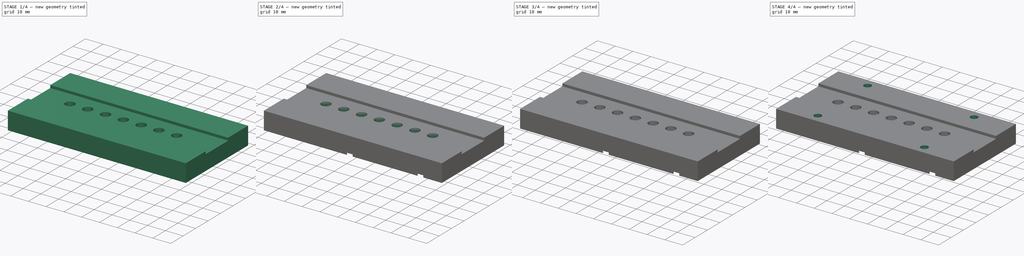
[diagram: build sequence overview — one tinted view per stage of 4, left to right]
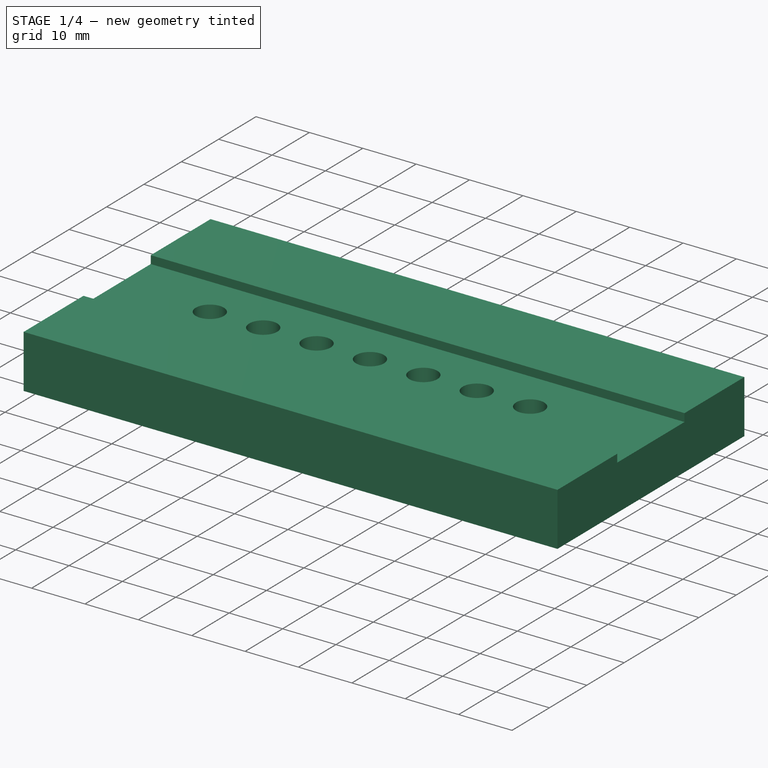
[diagram: stage 1 of 4 — iso view after this stage's code; geometry added in this stage tinted green]
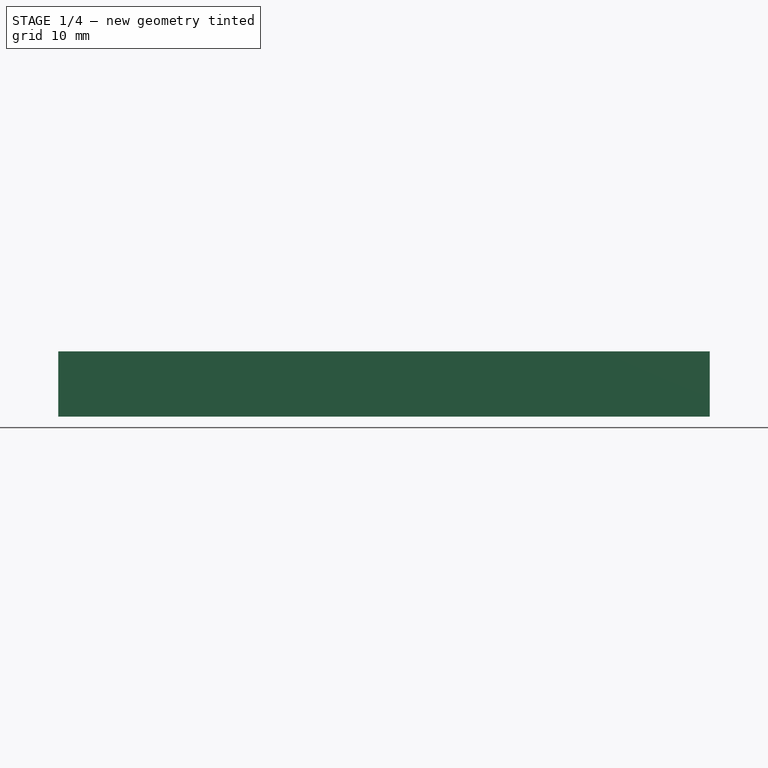
[diagram: stage 1 of 4 — front view after this stage's code; geometry added in this stage tinted green]
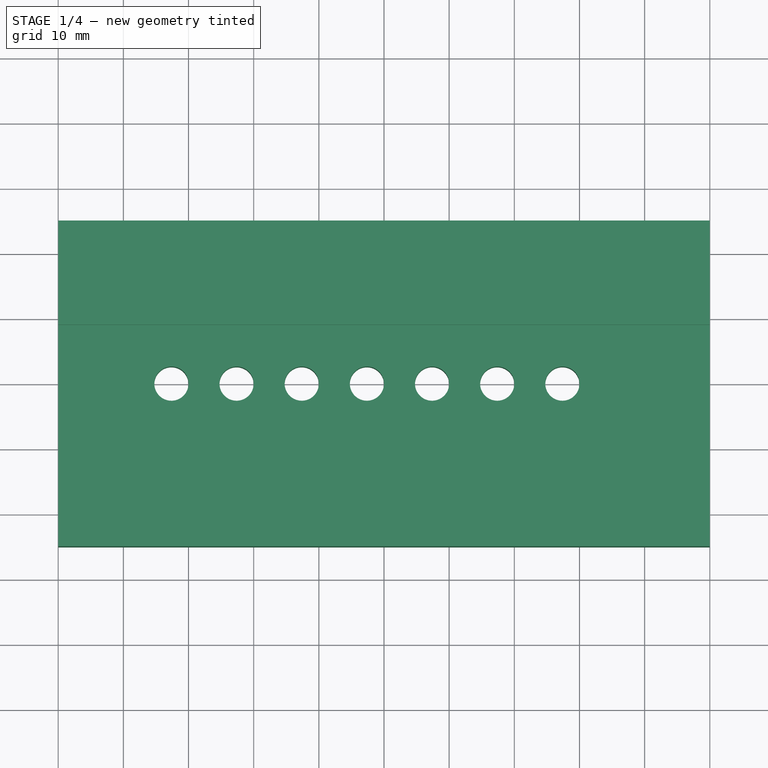
[diagram: stage 1 of 4 — top view after this stage's code; geometry added in this stage tinted green]
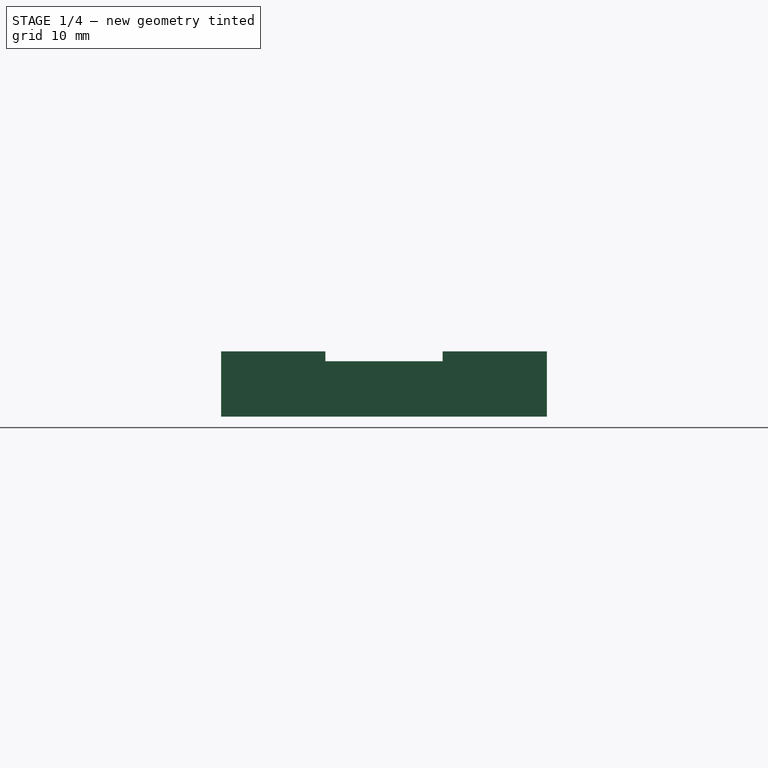
[diagram: stage 1 of 4 — right view after this stage's code; geometry added in this stage tinted green]
FCSTD DOCUMENT  (FreeCAD 0.20R29410 (Git))
Label: BladeholderRevB
License: All rights reserved
LicenseURL: http://en.wikipedia.org/wiki/All_rights_reserved
objects: Sketcher::SketchObject×12, PartDesign::Pocket×9, App::MeasureDistance×5, PartDesign::Pad×3, PartDesign::Plane×1, PartDesign::Chamfer×1, PartDesign::Body×1
note: 40 computed .brp shape members not serialized (recipe doc carries the construction recipe); baked Part::Feature solids carry a one-line shape summary decoded from their .brp

FEATURE [Sketcher::SketchObject] Sketch
  FullyConstrained = true
  MapMode = 5
  Support = -> [XY_Plane]
  sketch-geometry (4):
    g0: LineSegment StartX=-50 StartY=25 StartZ=0 EndX=50 EndY=25 EndZ=0
    g1: LineSegment StartX=50 StartY=25 StartZ=0 EndX=50 EndY=-25 EndZ=0
    g2: LineSegment StartX=50 StartY=-25 StartZ=0 EndX=-50 EndY=-25 EndZ=0
    g3: LineSegment StartX=-50 StartY=-25 StartZ=0 EndX=-50 EndY=25 EndZ=0
  constraints (11):
    c: Coincident(g0,g1)
    c: Coincident(g1,g2)
    c: Coincident(g2,g3)
    c: Coincident(g3,g0)
    c: Horizontal(g0)
    c: Horizontal(g2)
    c: Vertical(g1)
    c: Vertical(g3)
    c: Symmetric(g1,g0,g-1)
    c: DistanceX(g0,g0) = 100
    c: DistanceY(g3,g3) = 50
FEATURE [PartDesign::Pad] Pad
  Direction = (0,0,1)
  Length = 10
  Length2 = 10
  Profile = -> Sketch
  ReferenceAxis = -> Sketch [N_Axis]
  Type = 0
FEATURE [Sketcher::SketchObject] Sketch001
  ExternalGeometry = -> [Pad]
  FullyConstrained = true
  MapMode = 5
  Placement = pos=(0,0,10) rot=(0,0,1;0rad)
  Support = -> [Pad]
  sketch-geometry (4):
    g0: LineSegment StartX=-50 StartY=9 StartZ=0 EndX=50 EndY=9 EndZ=0
    g1: LineSegment StartX=50 StartY=9 StartZ=0 EndX=50 EndY=-9 EndZ=0
    g2: LineSegment StartX=50 StartY=-9 StartZ=0 EndX=-50 EndY=-9 EndZ=0
    g3: LineSegment StartX=-50 StartY=-9 StartZ=0 EndX=-50 EndY=9 EndZ=0
  constraints (11):
    c: Coincident(g0,g1)
    c: Coincident(g1,g2)
    c: Coincident(g2,g3)
    c: Coincident(g3,g0)
    c: Horizontal(g0)
    c: Horizontal(g2)
    c: Vertical(g1)
    c: Vertical(g3)
    c: PointOnObject(g0,g-3)
    c: Symmetric(g2,g0,g-1)
    c: DistanceY(g1,g1) = 18
FEATURE [PartDesign::Pocket] Pocket  label="BladeSlot"
  BaseFeature = -> Pad
  Direction = (0,0,-1)
  Length = 1.5
  Length2 = 5
  Profile = -> Sketch001
  ReferenceAxis = -> Sketch001 [N_Axis]
  Type = 0
FEATURE [App::MeasureDistance] Distance  label="Distance: 99.89 mm"
  Distance = 99.892
  P1 = (-50,25,5)
  P2 = (49.892,25,5)
FEATURE [App::MeasureDistance] Distance001  label="Distance: 49.70 mm"
  Distance = 49.704
  P1 = (-50,24.704,5)
  P2 = (-50,-25,5)
FEATURE [Sketcher::SketchObject] Sketch002
  ExternalGeometry = -> [Pocket]
  FullyConstrained = true
  MapMode = 5
  Placement = pos=(0,0,8.5) rot=(0,0,1;0rad)
  Support = -> [Pocket]
  sketch-geometry (7):
    g0: Circle CenterX=-22.625 CenterY=0 CenterZ=0 NormalX=0 NormalY=0 NormalZ=1 AngleXU=0 Radius=2.625
    g1: Circle CenterX=-12.625 CenterY=0 CenterZ=0 NormalX=0 NormalY=0 NormalZ=1 AngleXU=0 Radius=2.625
    g2: Circle CenterX=-2.625 CenterY=0 CenterZ=0 NormalX=0 NormalY=0 NormalZ=1 AngleXU=0 Radius=2.625
    g3: Circle CenterX=7.375 CenterY=0 CenterZ=0 NormalX=0 NormalY=0 NormalZ=1 AngleXU=0 Radius=2.625
    g4: Circle CenterX=17.375 CenterY=0 CenterZ=0 NormalX=0 NormalY=0 NormalZ=1 AngleXU=0 Radius=2.625
    g5: Circle CenterX=27.375 CenterY=0 CenterZ=0 NormalX=0 NormalY=0 NormalZ=1 AngleXU=0 Radius=2.625
    g6: Circle CenterX=-32.625 CenterY=0 CenterZ=0 NormalX=0 NormalY=0 NormalZ=1 AngleXU=0 Radius=2.625
  constraints (21):
    c: PointOnObject(g0,g-1)
    c: PointOnObject(g1,g-1)
    c: PointOnObject(g2,g-1)
    c: PointOnObject(g3,g-1)
    c: PointOnObject(g4,g-1)
    c: PointOnObject(g5,g-1)
    c: PointOnObject(g6,g-1)
    c: DistanceX(g6,g0) = 10
    c: DistanceX(g0,g1) = 10
    c: DistanceX(g1,g2) = 10
    c: DistanceX(g2,g3) = 10
    c: DistanceX(g3,g4) = 10
    c: DistanceX(g4,g5) = 10
    c: Equal(g6,g0)
    c: Equal(g0,g1)
    c: Equal(g1,g2)
    c: Equal(g2,g3)
    c: Equal(g3,g4)
    c: Equal(g4,g5)
    c: Diameter(g5) = 5.25
    c: DistanceX(g6,g-1) = 32.625
FEATURE [PartDesign::Pocket] Pocket001  label="BladeHoles"
  BaseFeature = -> Pocket
  Direction = (0,0,-1)
  Length = 5
  Length2 = 5
  Profile = -> Sketch002
  ReferenceAxis = -> Sketch002 [N_Axis]
  Type = 1
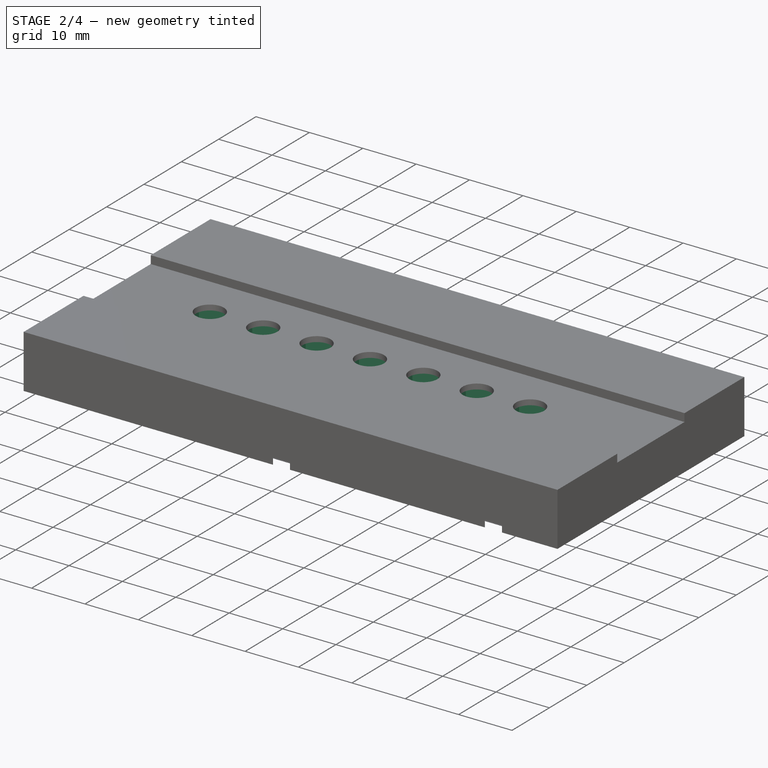
[diagram: stage 2 of 4 — iso view after this stage's code; geometry added in this stage tinted green]
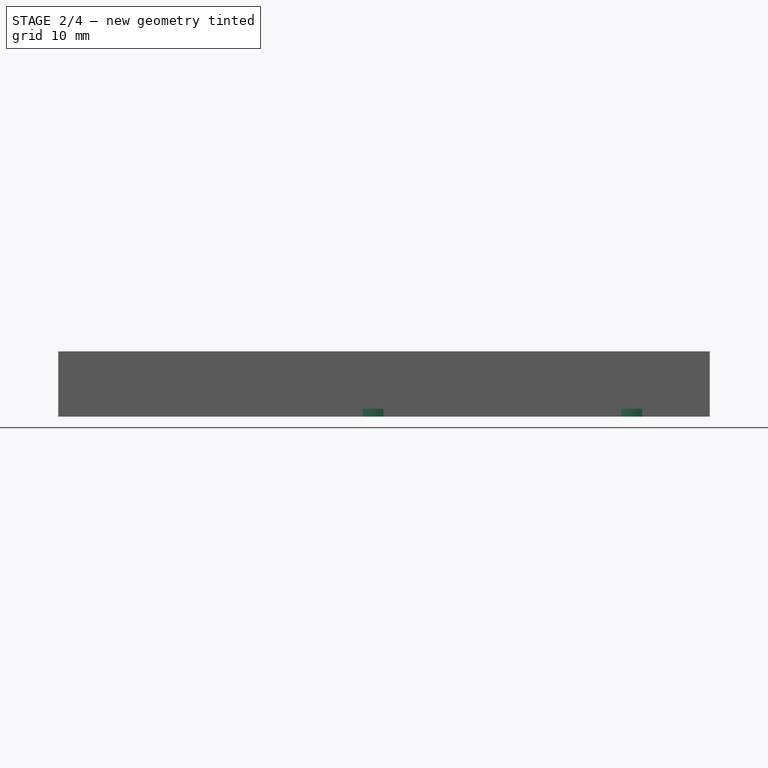
[diagram: stage 2 of 4 — front view after this stage's code; geometry added in this stage tinted green]
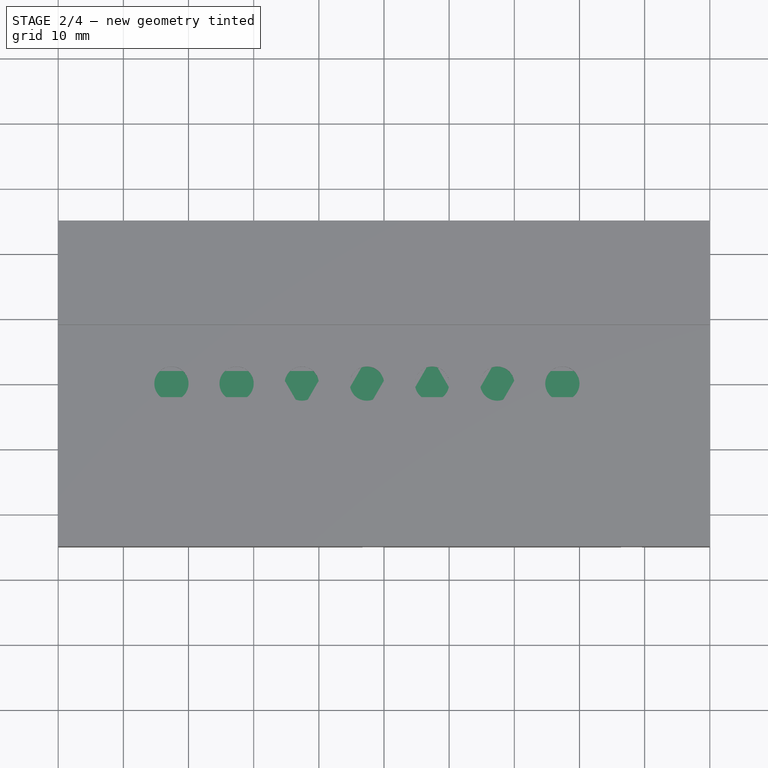
[diagram: stage 2 of 4 — top view after this stage's code; geometry added in this stage tinted green]
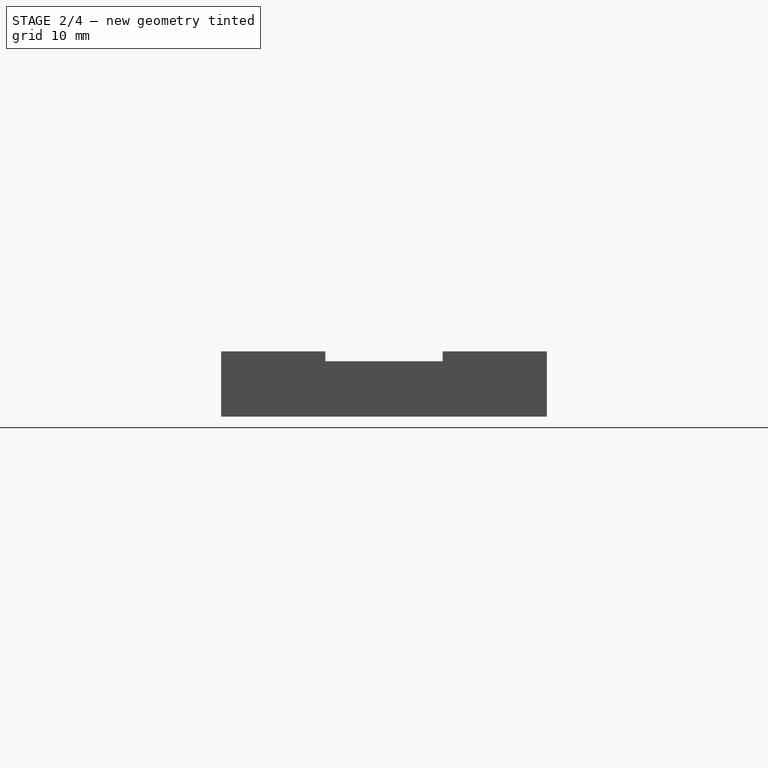
[diagram: stage 2 of 4 — right view after this stage's code; geometry added in this stage tinted green]
FEATURE [App::MeasureDistance] Distance002  label="Distance: 20.00 mm"
  Distance = 20.0026
  P1 = (29.9237,0.628204,3.5)
  P2 = (49.9152,-0.03678,3.5)
FEATURE [Sketcher::SketchObject] Sketch003
  ExternalGeometry = -> [Pocket001]
  FullyConstrained = true
  MapMode = 5
  Placement = pos=(0,0,0) rot=(1,0,0;3.14159rad)
  Support = -> [Pocket001]
  sketch-geometry (49):
    g0: LineSegment StartX=-32.625 StartY=-4 StartZ=0 EndX=-29.1609 EndY=-2 EndZ=0
    g1: LineSegment StartX=-29.1609 StartY=-2 StartZ=0 EndX=-29.1609 EndY=2 EndZ=0
    g2: LineSegment StartX=-29.1609 StartY=2 StartZ=0 EndX=-32.625 EndY=4 EndZ=0
    g3: LineSegment StartX=-32.625 StartY=4 StartZ=0 EndX=-36.0891 EndY=2 EndZ=0
    g4: LineSegment StartX=-36.0891 StartY=2 StartZ=0 EndX=-36.0891 EndY=-2 EndZ=0
    g5: LineSegment StartX=-36.0891 StartY=-2 StartZ=0 EndX=-32.625 EndY=-4 EndZ=0
    g6: Circle CenterX=-32.625 CenterY=0 CenterZ=0 NormalX=0 NormalY=0 NormalZ=1 AngleXU=0 Radius=4
    g7: LineSegment StartX=-22.625 StartY=-4 StartZ=0 EndX=-19.1609 EndY=-2 EndZ=0
    g8: LineSegment StartX=-19.1609 StartY=-2 StartZ=0 EndX=-19.1609 EndY=2 EndZ=0
    g9: LineSegment StartX=-19.1609 StartY=2 StartZ=0 EndX=-22.625 EndY=4 EndZ=0
    g10: LineSegment StartX=-22.625 StartY=4 StartZ=0 EndX=-26.0891 EndY=2 EndZ=0
    g11: LineSegment StartX=-26.0891 StartY=2 StartZ=0 EndX=-26.0891 EndY=-2 EndZ=0
    g12: LineSegment StartX=-26.0891 StartY=-2 StartZ=0 EndX=-22.625 EndY=-4 EndZ=0
    g13: Circle CenterX=-22.625 CenterY=0 CenterZ=0 NormalX=0 NormalY=0 NormalZ=1 AngleXU=0 Radius=4
    g14: LineSegment StartX=-12.625 StartY=-4 StartZ=0 EndX=-9.1609 EndY=-2 EndZ=0
    g15: LineSegment StartX=-9.1609 StartY=-2 StartZ=0 EndX=-9.1609 EndY=2 EndZ=0
    g16: LineSegment StartX=-9.1609 StartY=2 StartZ=0 EndX=-12.625 EndY=4 EndZ=0
    g17: LineSegment StartX=-12.625 StartY=4 StartZ=0 EndX=-16.0891 EndY=2 EndZ=0
    g18: LineSegment StartX=-16.0891 StartY=2 StartZ=0 EndX=-16.0891 EndY=-2 EndZ=0
    g19: LineSegment StartX=-16.0891 StartY=-2 StartZ=0 EndX=-12.625 EndY=-4 EndZ=0
    g20: Circle CenterX=-12.625 CenterY=0 CenterZ=0 NormalX=0 NormalY=0 NormalZ=1 AngleXU=0 Radius=4
    g21: LineSegment StartX=-2.625 StartY=-4 StartZ=0 EndX=0.839102 EndY=-2 EndZ=0
    g22: LineSegment StartX=0.839102 StartY=-2 StartZ=0 EndX=0.839102 EndY=2 EndZ=0
    g23: LineSegment StartX=0.839102 StartY=2 StartZ=0 EndX=-2.625 EndY=4 EndZ=0
    g24: LineSegment StartX=-2.625 StartY=4 StartZ=0 EndX=-6.0891 EndY=2 EndZ=0
    g25: LineSegment StartX=-6.0891 StartY=2 StartZ=0 EndX=-6.0891 EndY=-2 EndZ=0
    g26: LineSegment StartX=-6.0891 StartY=-2 StartZ=0 EndX=-2.625 EndY=-4 EndZ=0
    g27: Circle CenterX=-2.625 CenterY=0 CenterZ=0 NormalX=0 NormalY=0 NormalZ=1 AngleXU=0 Radius=4
    g28: LineSegment StartX=7.375 StartY=-4 StartZ=0 EndX=10.8391 EndY=-2 EndZ=0
    g29: LineSegment StartX=10.8391 StartY=-2 StartZ=0 EndX=10.8391 EndY=2 EndZ=0
    g30: LineSegment StartX=10.8391 StartY=2 StartZ=0 EndX=7.375 EndY=4 EndZ=0
    g31: LineSegment StartX=7.375 StartY=4 StartZ=0 EndX=3.9109 EndY=2 EndZ=0
    g32: LineSegment StartX=3.9109 StartY=2 StartZ=0 EndX=3.9109 EndY=-2 EndZ=0
    g33: LineSegment StartX=3.9109 StartY=-2 StartZ=0 EndX=7.375 EndY=-4 EndZ=0
    g34: Circle CenterX=7.375 CenterY=0 CenterZ=0 NormalX=0 NormalY=0 NormalZ=1 AngleXU=0 Radius=4
    g35: LineSegment StartX=17.375 StartY=-4 StartZ=0 EndX=20.8391 EndY=-2 EndZ=0
    g36: LineSegment StartX=20.8391 StartY=-2 StartZ=0 EndX=20.8391 EndY=2 EndZ=0
    g37: LineSegment StartX=20.8391 StartY=2 StartZ=0 EndX=17.375 EndY=4 EndZ=0
    g38: LineSegment StartX=17.375 StartY=4 StartZ=0 EndX=13.9109 EndY=2 EndZ=0
    g39: LineSegment StartX=13.9109 StartY=2 StartZ=0 EndX=13.9109 EndY=-2 EndZ=0
    g40: LineSegment StartX=13.9109 StartY=-2 StartZ=0 EndX=17.375 EndY=-4 EndZ=0
    g41: Circle CenterX=17.375 CenterY=0 CenterZ=0 NormalX=0 NormalY=0 NormalZ=1 AngleXU=0 Radius=4
    g42: LineSegment StartX=27.375 StartY=-4 StartZ=0 EndX=30.8391 EndY=-2 EndZ=0
    g43: LineSegment StartX=30.8391 StartY=-2 StartZ=0 EndX=30.8391 EndY=2 EndZ=0
    g44: LineSegment StartX=30.8391 StartY=2 StartZ=0 EndX=27.375 EndY=4 EndZ=0
    g45: LineSegment StartX=27.375 StartY=4 StartZ=0 EndX=23.9109 EndY=2 EndZ=0
    g46: LineSegment StartX=23.9109 StartY=2 StartZ=0 EndX=23.9109 EndY=-2 EndZ=0
    g47: LineSegment StartX=23.9109 StartY=-2 StartZ=0 EndX=27.375 EndY=-4 EndZ=0
    g48: Circle CenterX=27.375 CenterY=0 CenterZ=0 NormalX=0 NormalY=0 NormalZ=1 AngleXU=0 Radius=4
  constraints (112):
    c: Coincident(g0,g1)
    c: Coincident(g1,g2)
    c: Coincident(g2,g3)
    c: Coincident(g3,g4)
    c: Coincident(g4,g5)
    c: Coincident(g5,g0)
    c: Equal(g0, g1-g5) x5
    c: PointOnObject(g0,g6)
    c: PointOnObject(g1,g6)
    c: PointOnObject(g2,g6)
    c: PointOnObject(g3,g6)
    c: PointOnObject(g4,g6)
    c: PointOnObject(g5,g6)
    c: Coincident(g6,g-3)
    c: Coincident(g7,g8)
    c: Coincident(g8,g9)
    c: Coincident(g9,g10)
    c: Coincident(g10,g11)
    c: Coincident(g11,g12)
    c: Coincident(g12,g7)
    c: Equal(g7, g8-g12) x5
    c: PointOnObject(g7,g13)
    c: PointOnObject(g8,g13)
    c: PointOnObject(g9,g13)
    c: PointOnObject(g10,g13)
    c: PointOnObject(g11,g13)
    c: PointOnObject(g12,g13)
    c: Coincident(g13,g-4)
    c: Coincident(g14,g15)
    c: Coincident(g15,g16)
    c: Coincident(g16,g17)
    c: Coincident(g17,g18)
    c: Coincident(g18,g19)
    c: Coincident(g19,g14)
    c: Equal(g14, g15-g19) x5
    c: PointOnObject(g14,g20)
    c: PointOnObject(g15,g20)
    c: PointOnObject(g16,g20)
    c: PointOnObject(g17,g20)
    c: PointOnObject(g18,g20)
    c: PointOnObject(g19,g20)
    c: Coincident(g20,g-5)
    c: Coincident(g21,g22)
    c: Coincident(g22,g23)
    c: Coincident(g23,g24)
    c: Coincident(g24,g25)
    c: Coincident(g25,g26)
    c: Coincident(g26,g21)
    c: Equal(g21, g22-g26) x5
    c: PointOnObject(g21,g27)
    c: PointOnObject(g22,g27)
    c: PointOnObject(g23,g27)
    c: PointOnObject(g24,g27)
    c: PointOnObject(g25,g27)
    c: PointOnObject(g26,g27)
    c: Coincident(g27,g-6)
    c: Coincident(g28,g29)
    c: Coincident(g29,g30)
    c: Coincident(g30,g31)
    c: Coincident(g31,g32)
    c: Coincident(g32,g33)
    c: Coincident(g33,g28)
    c: Equal(g28, g29-g33) x5
    c: PointOnObject(g28,g34)
    c: PointOnObject(g29,g34)
    c: PointOnObject(g30,g34)
    c: PointOnObject(g31,g34)
    c: PointOnObject(g32,g34)
    c: PointOnObject(g33,g34)
    c: Coincident(g34,g-7)
    c: Coincident(g35,g36)
    c: Coincident(g36,g37)
    c: Coincident(g37,g38)
    c: Coincident(g38,g39)
    c: Coincident(g39,g40)
    c: Coincident(g40,g35)
    c: Equal(g35, g36-g40) x5
    c: PointOnObject(g35,g41)
    c: PointOnObject(g36,g41)
    c: PointOnObject(g37,g41)
    c: PointOnObject(g38,g41)
    c: PointOnObject(g39,g41)
    c: PointOnObject(g40,g41)
    c: Coincident(g41,g-8)
    c: Coincident(g42,g43)
    c: Coincident(g43,g44)
    c: Coincident(g44,g45)
    c: Coincident(g45,g46)
    c: Coincident(g46,g47)
    c: Coincident(g47,g42)
    c: Equal(g42, g43-g47) x5
    c: PointOnObject(g42,g48)
    c: PointOnObject(g43,g48)
    c: PointOnObject(g44,g48)
    c: PointOnObject(g45,g48)
    c: PointOnObject(g46,g48)
    c: PointOnObject(g47,g48)
    c: Coincident(g48,g-9)
    c: Vertical(g4,g3)
    c: Vertical(g11,g10)
    c: Vertical(g18,g17)
    c: Vertical(g25,g24)
    c: Vertical(g32,g31)
    c: Vertical(g39,g38)
    c: Vertical(g46,g45)
    c: Equal(g6,g13)
    c: Equal(g13,g20)
    c: Equal(g20,g27)
    c: Equal(g27,g34)
    c: Equal(g34,g41)
    c: Equal(g41,g48)
    c: Diameter(g6) = 8
FEATURE [PartDesign::Pocket] Pocket002  label="BladeNutHoles"
  BaseFeature = -> Pocket001
  Direction = (0,0,1)
  Length = 7.5
  Length2 = 5
  Profile = -> Sketch003
  ReferenceAxis = -> Sketch003 [N_Axis]
  Type = 0
FEATURE [PartDesign::Plane] DatumPlane
  AttachmentOffset = pos=(0,0,-4.5) rot=(0,0,1;0rad)
  Length = 114.142
  MapMode = 5
  Placement = pos=(0,0,4.5) rot=(1,0,0;3.14159rad)
  ResizeMode = 0
  Support = -> [Pocket002]
  Width = 64.1421
FEATURE [Sketcher::SketchObject] Sketch004
  FullyConstrained = true
  MapMode = 5
  Placement = pos=(0,0,4.5) rot=(1,0,0;3.14159rad)
  Support = -> [DatumPlane]
  sketch-geometry (4):
    g0: LineSegment StartX=-38.5 StartY=7.5 StartZ=0 EndX=38.5 EndY=7.5 EndZ=0
    g1: LineSegment StartX=38.5 StartY=7.5 StartZ=0 EndX=38.5 EndY=-7.5 EndZ=0
    g2: LineSegment StartX=38.5 StartY=-7.5 StartZ=0 EndX=-38.5 EndY=-7.5 EndZ=0
    g3: LineSegment StartX=-38.5 StartY=-7.5 StartZ=0 EndX=-38.5 EndY=7.5 EndZ=0
  constraints (11):
    c: Coincident(g0,g1)
    c: Coincident(g1,g2)
    c: Coincident(g2,g3)
    c: Coincident(g3,g0)
    c: Horizontal(g0)
    c: Horizontal(g2)
    c: Vertical(g1)
    c: Vertical(g3)
    c: DistanceY(g3,g3) = 15
    c: DistanceX(g0,g0) = 77
    c: Symmetric(g2,g0,g-1)
FEATURE [PartDesign::Pad] Pad001  label="2ndBladeSlotFiller"
  BaseFeature = -> Pocket002
  Direction = (0,0,-1)
  Length = 4.5
  Length2 = 10
  Profile = -> Sketch004
  ReferenceAxis = -> Sketch004 [N_Axis]
  Type = 0
FEATURE [Sketcher::SketchObject] Sketch005
  ExternalGeometry = -> [Pad001]
  FullyConstrained = true
  MapMode = 5
  Placement = pos=(0,0,0) rot=(1,0,0;3.14159rad)
  Support = -> [Pad001]
  sketch-geometry (4):
    g0: Circle CenterX=38 CenterY=20 CenterZ=0 NormalX=0 NormalY=0 NormalZ=1 AngleXU=0 Radius=5.25
    g1: Circle CenterX=38 CenterY=-20 CenterZ=0 NormalX=0 NormalY=0 NormalZ=1 AngleXU=0 Radius=5.25
    g2: Circle CenterX=-1.7 CenterY=20 CenterZ=0 NormalX=0 NormalY=0 NormalZ=1 AngleXU=0 Radius=5.25
    g3: Circle CenterX=-1.7 CenterY=-20 CenterZ=0 NormalX=0 NormalY=0 NormalZ=1 AngleXU=0 Radius=5.25
  constraints (13):
    c: Vertical(g1,g0)
    c: Vertical(g3,g2)
    c: Equal(g0,g1)
    c: Equal(g1,g3)
    c: Equal(g3,g2)
    c: Diameter(g0) = 10.5
    c: Horizontal(g3,g1)
    c: Horizontal(g2,g0)
    c: DistanceX(g0,g-3) = 12
    c: DistanceY(g1,g0) = 40
    c: DistanceY(g-3,g-3) = 50
    c: DistanceY(g1,g-1) = 20
    c: DistanceX(g2,g0) = 39.7
FEATURE [PartDesign::Pocket] Pocket003
  BaseFeature = -> Pad001
  Direction = (0,0,1)
  Length = 1.2
  Length2 = 5
  Profile = -> Sketch005
  ReferenceAxis = -> Sketch005 [N_Axis]
  Type = 0
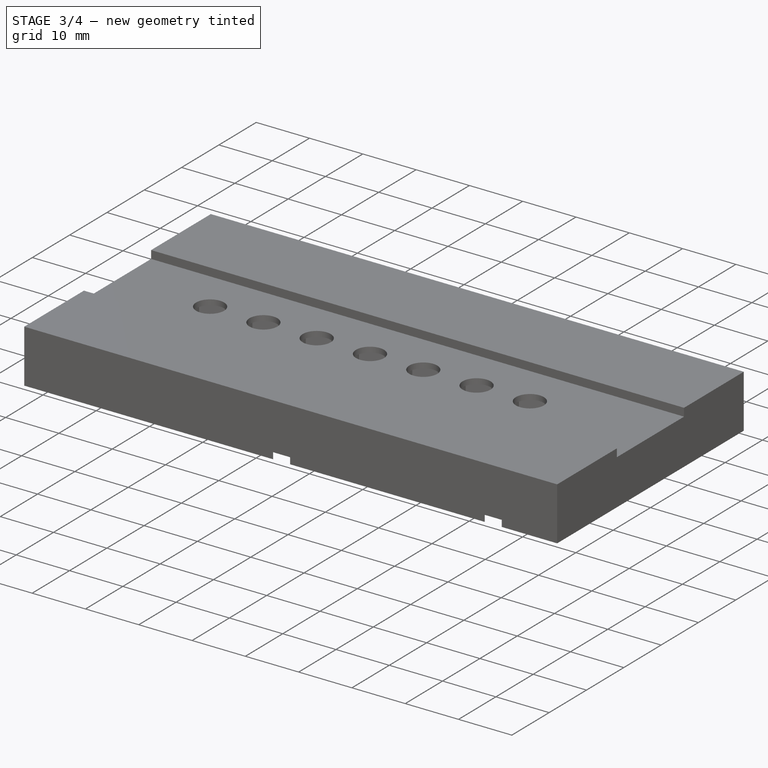
[diagram: stage 3 of 4 — iso view after this stage's code; geometry added in this stage tinted green]
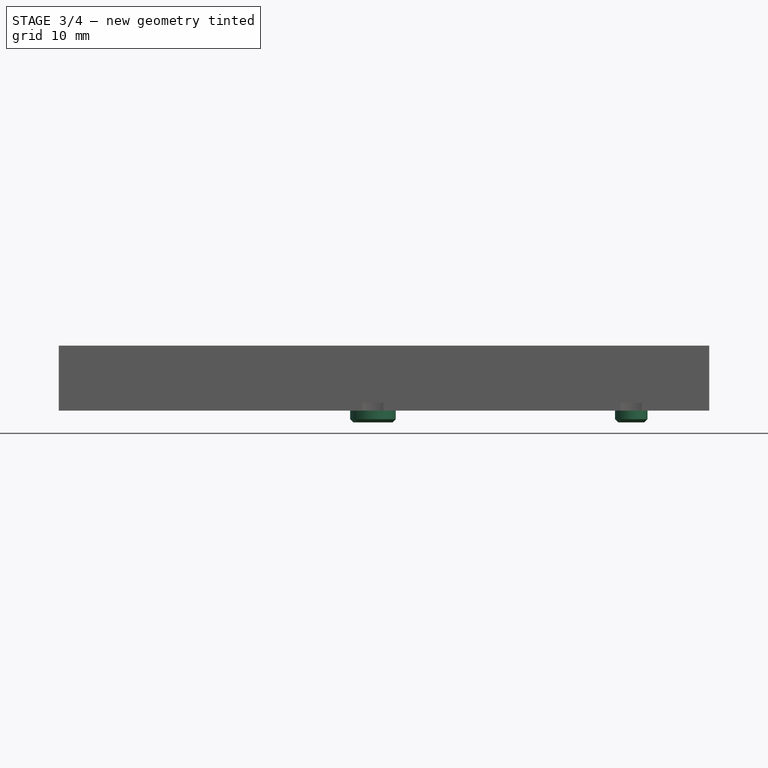
[diagram: stage 3 of 4 — front view after this stage's code; geometry added in this stage tinted green]
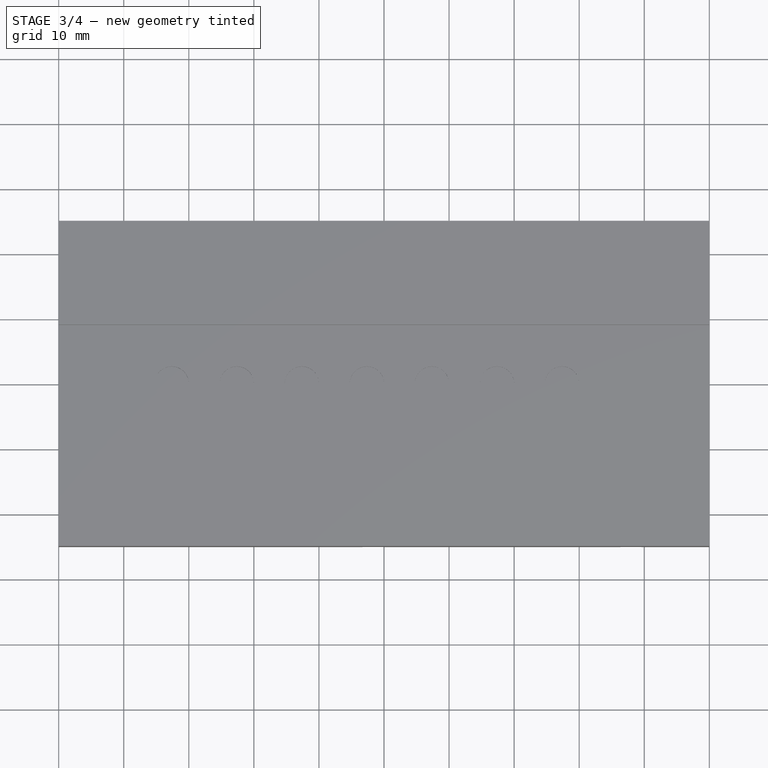
[diagram: stage 3 of 4 — top view after this stage's code; geometry added in this stage tinted green]
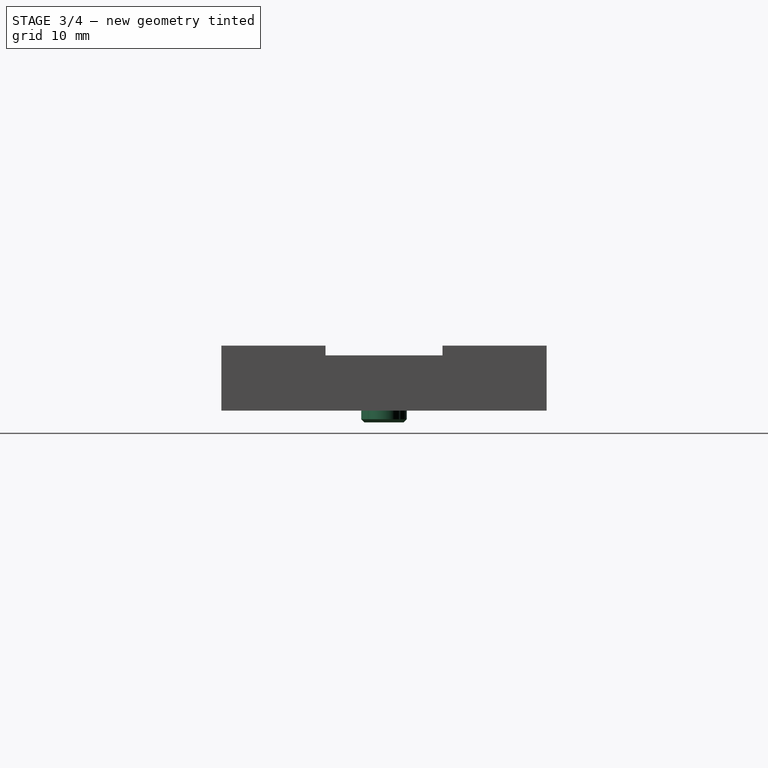
[diagram: stage 3 of 4 — right view after this stage's code; geometry added in this stage tinted green]
FEATURE [App::MeasureDistance] Distance003  label="Distance: 29.83 mm"
  Distance = 29.8255
  P1 = (27.3969,-3.88737,7.5)
  P2 = (57.0711,-3.90561,4.5)
FEATURE [App::MeasureDistance] Distance004  label="Distance: 3.05 mm"
  Distance = 3.04652
  P1 = (30.7525,-1.95,7.5)
  P2 = (31.2708,-2.06273,4.5)
FEATURE [Sketcher::SketchObject] Sketch006
  ExternalGeometry = -> [Pocket003]
  FullyConstrained = true
  MapMode = 5
  Placement = pos=(0,0,1.2) rot=(1,0,0;3.14159rad)
  Support = -> [Pocket003]
  sketch-geometry (2):
    g0: Circle CenterX=-1.7 CenterY=0 CenterZ=0 NormalX=0 NormalY=0 NormalZ=1 AngleXU=0 Radius=3.5
    g1: Circle CenterX=38 CenterY=0 CenterZ=0 NormalX=0 NormalY=0 NormalZ=1 AngleXU=0 Radius=2.5
  constraints (6):
    c: PointOnObject(g0,g-1)
    c: PointOnObject(g1,g-1)
    c: Diameter(g0) = 7
    c: Diameter(g1) = 5
    c: Vertical(g1,g-6)
    c: Vertical(g-7,g0)
FEATURE [PartDesign::Pad] Pad002
  BaseFeature = -> Pocket003
  Direction = (0,0,-1)
  Length = 3
  Length2 = 10
  Profile = -> Sketch006
  ReferenceAxis = -> Sketch006 [N_Axis]
  Type = 0
FEATURE [Sketcher::SketchObject] Sketch008
  FullyConstrained = false
  MapMode = 5
  Placement = pos=(0,0,-1.8) rot=(1,0,0;3.14159rad)
  sketch-geometry (2):
    g0: Circle CenterX=-1.7 CenterY=0 CenterZ=0 NormalX=0 NormalY=0 NormalZ=1 AngleXU=0 Radius=2
    g1: Circle CenterX=38 CenterY=0 CenterZ=0 NormalX=0 NormalY=0 NormalZ=1 AngleXU=0 Radius=2
  constraints (2):
    c: Equal(g0,g1)
    c: Diameter(g0) = 4
FEATURE [PartDesign::Pocket] Pocket005
  BaseFeature = -> Pad002
  Direction = (0,0,1)
  Length = 5
  Length2 = 5
  Profile = -> Sketch008
  ReferenceAxis = -> Sketch008 [N_Axis]
  Type = 0
FEATURE [Sketcher::SketchObject] Sketch009
  ExternalGeometry = -> [Pad002]
  FullyConstrained = true
  MapMode = 5
  Placement = pos=(0,0,-1.8) rot=(1,0,0;3.14159rad)
  Support = -> [Pad002]
  sketch-geometry (2):
    g0: Circle CenterX=-1.7 CenterY=0 CenterZ=0 NormalX=0 NormalY=0 NormalZ=1 AngleXU=0 Radius=2
    g1: Circle CenterX=38 CenterY=0 CenterZ=0 NormalX=0 NormalY=0 NormalZ=1 AngleXU=0 Radius=2
  constraints (4):
    c: Coincident(g0,g-3)
    c: Coincident(g1,g-4)
    c: Equal(g1,g0)
    c: Diameter(g0) = 4
FEATURE [PartDesign::Pocket] Pocket006
  BaseFeature = -> Pocket005
  Direction = (0,0,1)
  Length = 5
  Length2 = 5
  Profile = -> Sketch009
  ReferenceAxis = -> Sketch009 [N_Axis]
  Type = 0
FEATURE [PartDesign::Chamfer] Chamfer
  Angle = 45
  Base = -> Pocket006 [Edge123,Edge110]
  BaseFeature = -> Pocket006
  ChamferType = 0
  FlipDirection = false
  Size = 0.49
  Size2 = 1
  SupportTransform = false
  UseAllEdges = false
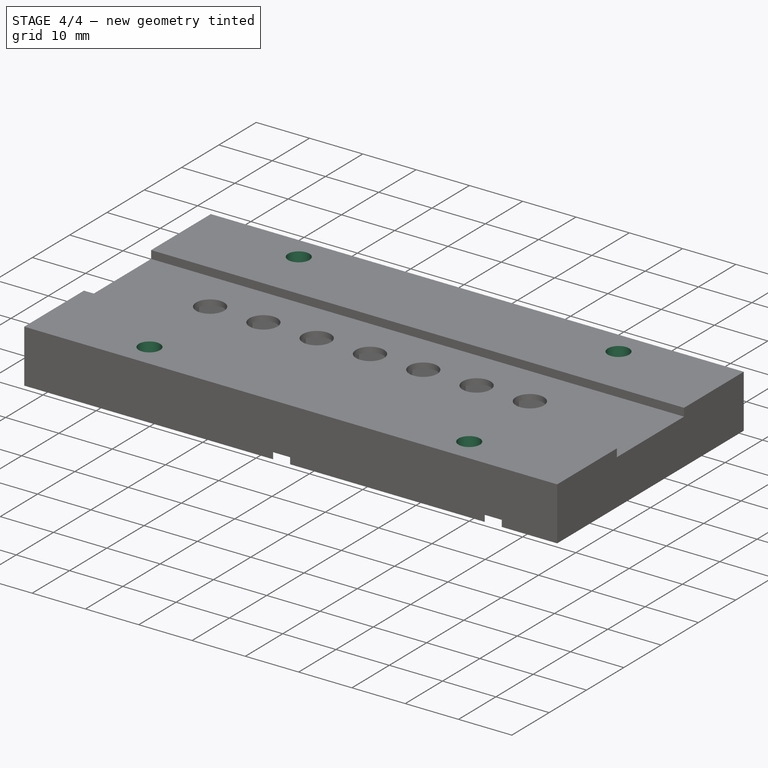
[diagram: stage 4 of 4 — iso view after this stage's code; geometry added in this stage tinted green]
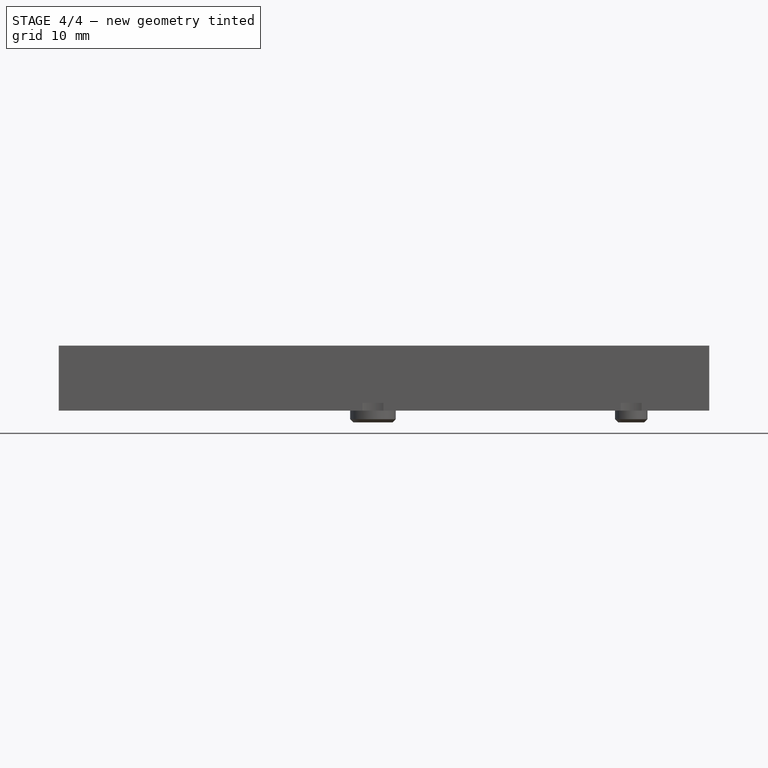
[diagram: stage 4 of 4 — front view after this stage's code; geometry added in this stage tinted green]
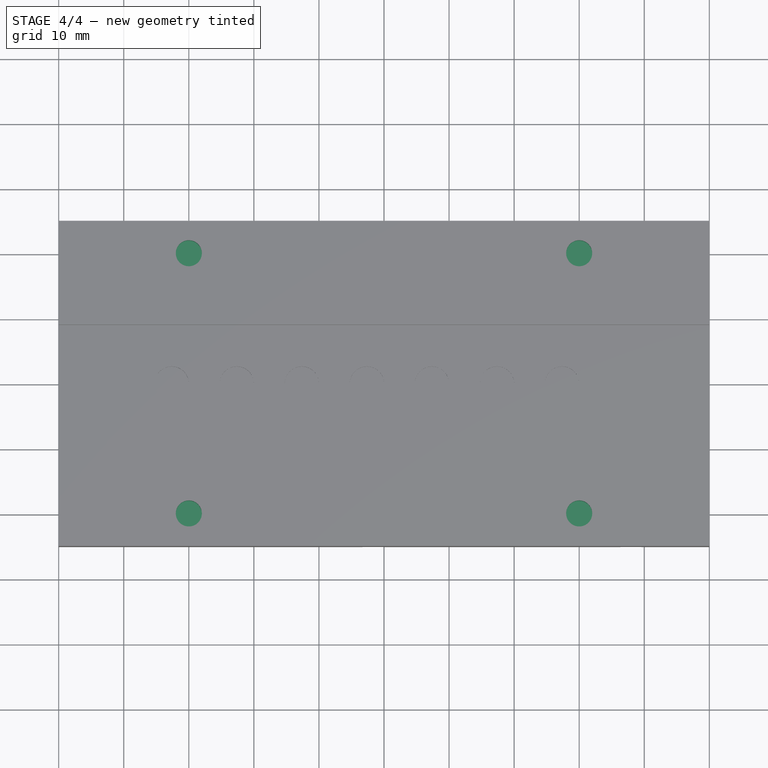
[diagram: stage 4 of 4 — top view after this stage's code; geometry added in this stage tinted green]
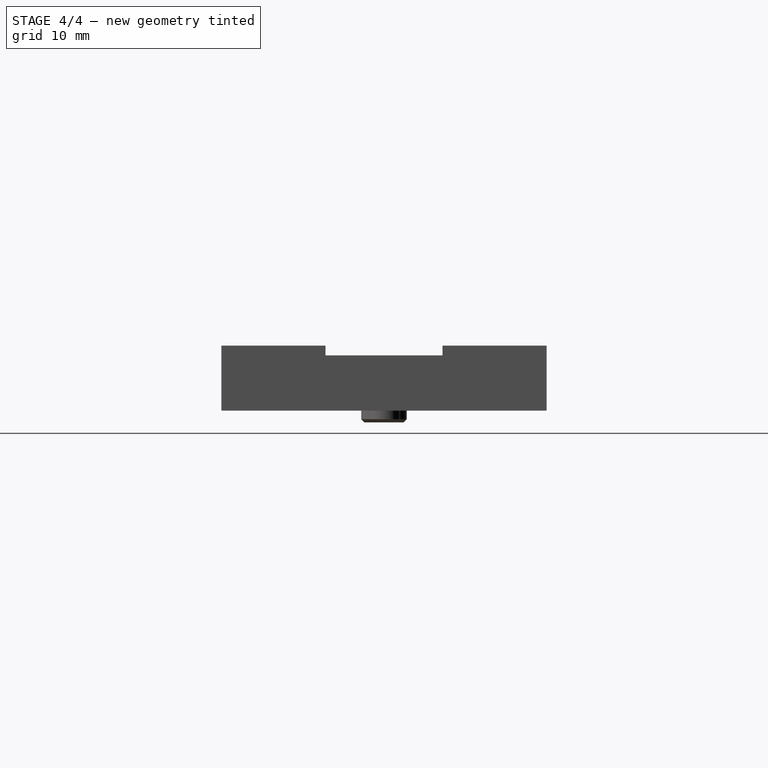
[diagram: stage 4 of 4 — right view after this stage's code; geometry added in this stage tinted green]
FEATURE [Sketcher::SketchObject] Sketch010
  ExternalGeometry = -> [Chamfer]
  FullyConstrained = true
  MapMode = 5
  Placement = pos=(0,0,3.2) rot=(1,0,0;3.14159rad)
  Support = -> [Chamfer]
  sketch-geometry (14):
    g0: LineSegment StartX=-1.7 StartY=-4 StartZ=0 EndX=1.7641 EndY=-2 EndZ=0
    g1: LineSegment StartX=1.7641 StartY=-2 StartZ=0 EndX=1.7641 EndY=2 EndZ=0
    g2: LineSegment StartX=1.7641 StartY=2 StartZ=0 EndX=-1.7 EndY=4 EndZ=0
    g3: LineSegment StartX=-1.7 StartY=4 StartZ=0 EndX=-5.1641 EndY=2 EndZ=0
    g4: LineSegment StartX=-5.1641 StartY=2 StartZ=0 EndX=-5.1641 EndY=-2 EndZ=0
    g5: LineSegment StartX=-5.1641 StartY=-2 StartZ=0 EndX=-1.7 EndY=-4 EndZ=0
    g6: Circle CenterX=-1.7 CenterY=0 CenterZ=0 NormalX=0 NormalY=0 NormalZ=1 AngleXU=0 Radius=4
    g7: LineSegment StartX=34.5359 StartY=-2 StartZ=0 EndX=38 EndY=-4 EndZ=0
    g8: LineSegment StartX=38 StartY=-4 StartZ=0 EndX=41.4641 EndY=-2 EndZ=0
    g9: LineSegment StartX=41.4641 StartY=-2 StartZ=0 EndX=41.4641 EndY=2 EndZ=0
    g10: LineSegment StartX=41.4641 StartY=2 StartZ=0 EndX=38 EndY=4 EndZ=0
    g11: LineSegment StartX=38 StartY=4 StartZ=0 EndX=34.5359 EndY=2 EndZ=0
    g12: LineSegment StartX=34.5359 StartY=2 StartZ=0 EndX=34.5359 EndY=-2 EndZ=0
    g13: Circle CenterX=38 CenterY=0 CenterZ=0 NormalX=0 NormalY=0 NormalZ=1 AngleXU=0 Radius=4
  constraints (32):
    c: Coincident(g0,g1)
    c: Coincident(g1,g2)
    c: Coincident(g2,g3)
    c: Coincident(g3,g4)
    c: Coincident(g4,g5)
    c: Coincident(g5,g0)
    c: Equal(g0, g1-g5) x5
    c: PointOnObject(g0,g6)
    c: PointOnObject(g1,g6)
    c: PointOnObject(g2,g6)
    c: PointOnObject(g3,g6)
    c: PointOnObject(g4,g6)
    c: PointOnObject(g5,g6)
    c: Coincident(g6,g-3)
    c: Coincident(g7,g8)
    c: Coincident(g8,g9)
    c: Coincident(g9,g10)
    c: Coincident(g10,g11)
    c: Coincident(g11,g12)
    c: Coincident(g12,g7)
    c: Equal(g7, g8-g12) x5
    c: PointOnObject(g7,g13)
    c: PointOnObject(g8,g13)
    c: PointOnObject(g9,g13)
    c: PointOnObject(g10,g13)
    c: PointOnObject(g11,g13)
    c: PointOnObject(g12,g13)
    c: Coincident(g13,g-4)
    c: Vertical(g0,g1)
    c: Vertical(g7,g11)
    c: Equal(g6,g13)
    c: Diameter(g6) = 8
FEATURE [PartDesign::Pocket] Pocket007
  BaseFeature = -> Chamfer
  Direction = (0,0,1)
  Length = 2.15
  Length2 = 0.85
  Profile = -> Sketch010
  ReferenceAxis = -> Sketch010 [N_Axis]
  Reversed = true
  Type = 4
FEATURE [Sketcher::SketchObject] Sketch011
  FullyConstrained = true
  MapMode = 5
  Placement = pos=(0,0,10) rot=(0,0,1;0rad)
  Support = -> [Pocket007]
  sketch-geometry (4):
    g0: Circle CenterX=-30 CenterY=20 CenterZ=0 NormalX=0 NormalY=0 NormalZ=1 AngleXU=0 Radius=2
    g1: Circle CenterX=30 CenterY=20 CenterZ=0 NormalX=0 NormalY=0 NormalZ=1 AngleXU=0 Radius=2
    g2: Circle CenterX=30 CenterY=-20 CenterZ=0 NormalX=0 NormalY=0 NormalZ=1 AngleXU=0 Radius=2
    g3: Circle CenterX=-30 CenterY=-20 CenterZ=0 NormalX=0 NormalY=0 NormalZ=1 AngleXU=0 Radius=2
  constraints (11):
    c: Equal(g0,g1)
    c: Equal(g1,g2)
    c: Equal(g2,g3)
    c: Horizontal(g1,g0)
    c: Horizontal(g3,g2)
    c: Vertical(g0,g3)
    c: Vertical(g1,g2)
    c: Symmetric(g0,g2,g-1)
    c: DistanceX(g0,g-1) = 30
    c: DistanceY(g-1,g0) = 20
    c: Diameter(g0) = 4
FEATURE [PartDesign::Pocket] Pocket008
  BaseFeature = -> Pocket007
  Direction = (0,0,-1)
  Length = 6
  Length2 = 5
  Profile = -> Sketch011
  ReferenceAxis = -> Sketch011 [N_Axis]
  Type = 0
FEATURE [Sketcher::SketchObject] Sketch012
  ExternalGeometry = -> [Pocket008]
  FullyConstrained = true
  MapMode = 5
  Placement = pos=(0,0,4) rot=(0,0,1;0rad)
  Support = -> [Pocket008]
  sketch-geometry (28):
    g0: LineSegment StartX=-30 StartY=16 StartZ=0 EndX=-26.5359 EndY=18 EndZ=0
    g1: LineSegment StartX=-26.5359 StartY=18 StartZ=0 EndX=-26.5359 EndY=22 EndZ=0
    g2: LineSegment StartX=-26.5359 StartY=22 StartZ=0 EndX=-30 EndY=24 EndZ=0
    g3: LineSegment StartX=-30 StartY=24 StartZ=0 EndX=-33.4641 EndY=22 EndZ=0
    g4: LineSegment StartX=-33.4641 StartY=22 StartZ=0 EndX=-33.4641 EndY=18 EndZ=0
    g5: LineSegment StartX=-33.4641 StartY=18 StartZ=0 EndX=-30 EndY=16 EndZ=0
    g6: Circle CenterX=-30 CenterY=20 CenterZ=0 NormalX=0 NormalY=0 NormalZ=1 AngleXU=0 Radius=4
    g7: LineSegment StartX=30 StartY=16 StartZ=0 EndX=33.4641 EndY=18 EndZ=0
    g8: LineSegment StartX=33.4641 StartY=18 StartZ=0 EndX=33.4641 EndY=22 EndZ=0
    g9: LineSegment StartX=33.4641 StartY=22 StartZ=0 EndX=30 EndY=24 EndZ=0
    g10: LineSegment StartX=30 StartY=24 StartZ=0 EndX=26.5359 EndY=22 EndZ=0
    g11: LineSegment StartX=26.5359 StartY=22 StartZ=0 EndX=26.5359 EndY=18 EndZ=0
    g12: LineSegment StartX=26.5359 StartY=18 StartZ=0 EndX=30 EndY=16 EndZ=0
    g13: Circle CenterX=30 CenterY=20 CenterZ=0 NormalX=0 NormalY=0 NormalZ=1 AngleXU=0 Radius=4
    g14: LineSegment StartX=-30 StartY=-24 StartZ=0 EndX=-26.5359 EndY=-22 EndZ=0
    g15: LineSegment StartX=-26.5359 StartY=-22 StartZ=0 EndX=-26.5359 EndY=-18 EndZ=0
    g16: LineSegment StartX=-26.5359 StartY=-18 StartZ=0 EndX=-30 EndY=-16 EndZ=0
    g17: LineSegment StartX=-30 StartY=-16 StartZ=0 EndX=-33.4641 EndY=-18 EndZ=0
    g18: LineSegment StartX=-33.4641 StartY=-18 StartZ=0 EndX=-33.4641 EndY=-22 EndZ=0
    g19: LineSegment StartX=-33.4641 StartY=-22 StartZ=0 EndX=-30 EndY=-24 EndZ=0
    g20: Circle CenterX=-30 CenterY=-20 CenterZ=0 NormalX=0 NormalY=0 NormalZ=1 AngleXU=0 Radius=4
    g21: LineSegment StartX=30 StartY=-24 StartZ=0 EndX=33.4641 EndY=-22 EndZ=0
    g22: LineSegment StartX=33.4641 StartY=-22 StartZ=0 EndX=33.4641 EndY=-18 EndZ=0
    g23: LineSegment StartX=33.4641 StartY=-18 StartZ=0 EndX=30 EndY=-16 EndZ=0
    g24: LineSegment StartX=30 StartY=-16 StartZ=0 EndX=26.5359 EndY=-18 EndZ=0
    g25: LineSegment StartX=26.5359 StartY=-18 StartZ=0 EndX=26.5359 EndY=-22 EndZ=0
    g26: LineSegment StartX=26.5359 StartY=-22 StartZ=0 EndX=30 EndY=-24 EndZ=0
    g27: Circle CenterX=30 CenterY=-20 CenterZ=0 NormalX=0 NormalY=0 NormalZ=1 AngleXU=0 Radius=4
  constraints (64):
    c: Coincident(g0,g1)
    c: Coincident(g1,g2)
    c: Coincident(g2,g3)
    c: Coincident(g3,g4)
    c: Coincident(g4,g5)
    c: Coincident(g5,g0)
    c: Equal(g0, g1-g5) x5
    c: PointOnObject(g0,g6)
    c: PointOnObject(g1,g6)
    c: PointOnObject(g2,g6)
    c: PointOnObject(g3,g6)
    c: PointOnObject(g4,g6)
    c: PointOnObject(g5,g6)
    c: Coincident(g6,g-3)
    c: Coincident(g7,g8)
    c: Coincident(g8,g9)
    c: Coincident(g9,g10)
    c: Coincident(g10,g11)
    c: Coincident(g11,g12)
    c: Coincident(g12,g7)
    c: Equal(g7, g8-g12) x5
    c: PointOnObject(g7,g13)
    c: PointOnObject(g8,g13)
    c: PointOnObject(g9,g13)
    c: PointOnObject(g10,g13)
    c: PointOnObject(g11,g13)
    c: PointOnObject(g12,g13)
    c: Coincident(g13,g-4)
    c: Coincident(g14,g15)
    c: Coincident(g15,g16)
    c: Coincident(g16,g17)
    c: Coincident(g17,g18)
    c: Coincident(g18,g19)
    c: Coincident(g19,g14)
    c: Equal(g14, g15-g19) x5
    c: PointOnObject(g14,g20)
    c: PointOnObject(g15,g20)
    c: PointOnObject(g16,g20)
    c: PointOnObject(g17,g20)
    c: PointOnObject(g18,g20)
    c: PointOnObject(g19,g20)
    c: Coincident(g20,g-6)
    c: Coincident(g21,g22)
    c: Coincident(g22,g23)
    c: Coincident(g23,g24)
    c: Coincident(g24,g25)
    c: Coincident(g25,g26)
    c: Coincident(g26,g21)
    c: Equal(g21, g22-g26) x5
    c: PointOnObject(g21,g27)
    c: PointOnObject(g22,g27)
    c: PointOnObject(g23,g27)
    c: PointOnObject(g24,g27)
    c: PointOnObject(g25,g27)
    c: PointOnObject(g26,g27)
    c: Coincident(g27,g-5)
    c: Vertical(g0,g1)
    c: Vertical(g15,g14)
    c: Vertical(g8,g7)
    c: Vertical(g22,g21)
    c: Equal(g6,g20)
    c: Equal(g20,g27)
    c: Equal(g27,g13)
    c: Diameter(g6) = 8
FEATURE [PartDesign::Pocket] Pocket009
  BaseFeature = -> Pocket008
  Direction = (0,0,-1)
  Length = 3
  Length2 = 5
  Profile = -> Sketch012
  ReferenceAxis = -> Sketch012 [N_Axis]
  Reversed = true
  Type = 0
FEATURE [PartDesign::Body] Body
  Group = -> [Sketch,Pad,Sketch001,Pocket,Sketch002,Pocket001,Sketch003,Pocket002,DatumPlane,Sketch004,Pad001,Sketch005,Pocket003,Sketch006,Pad002,Sketch008,Pocket005,Sketch009,Pocket006,Chamfer,Sketch010,Pocket007,Sketch011,Pocket008,Sketch012,Pocket009]
  Origin = -> Origin
  Tip = -> Pocket009
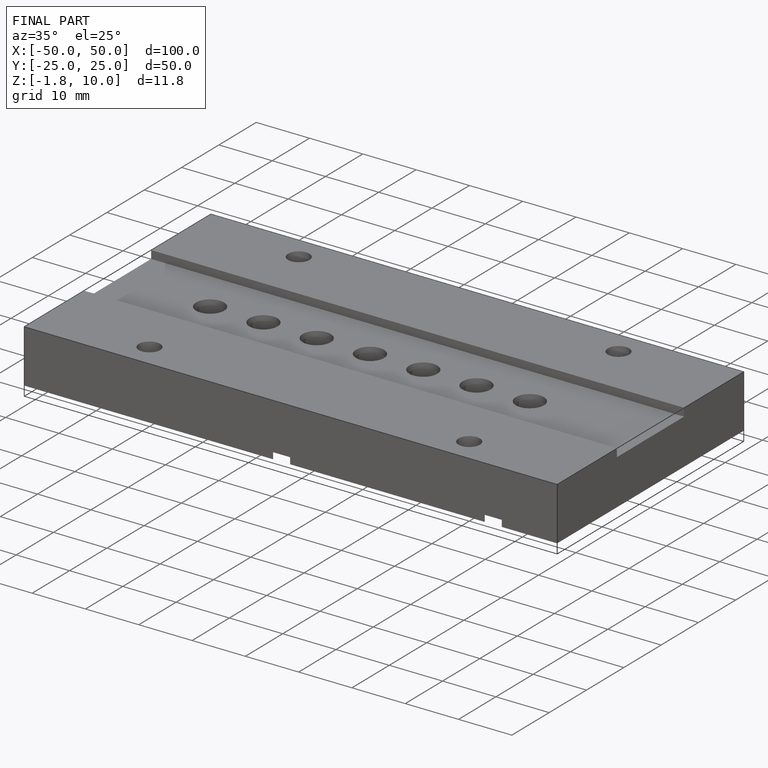
[diagram: finished part — iso view with bounding-box wireframe]
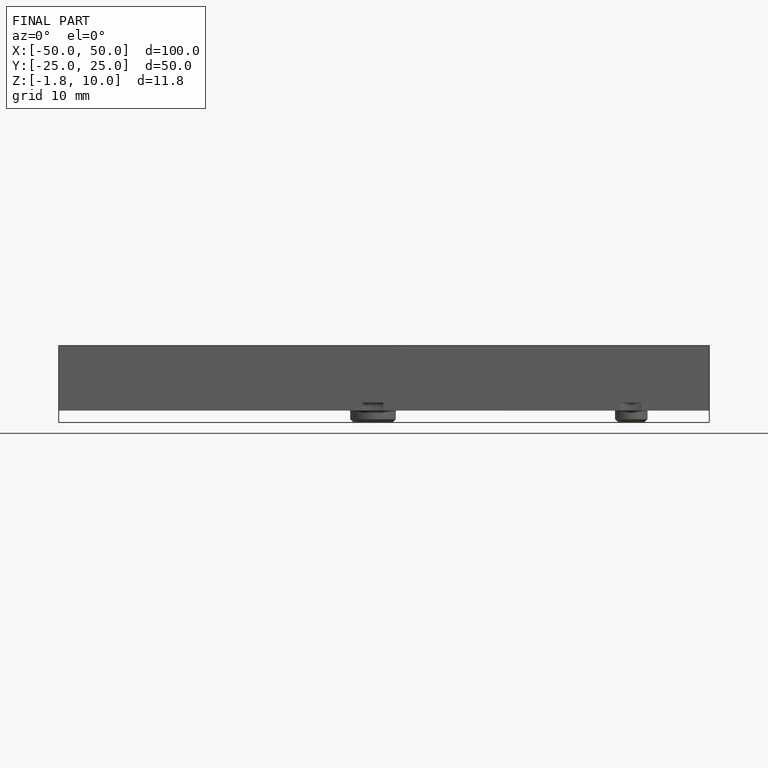
[diagram: finished part — front view with bounding-box wireframe]
